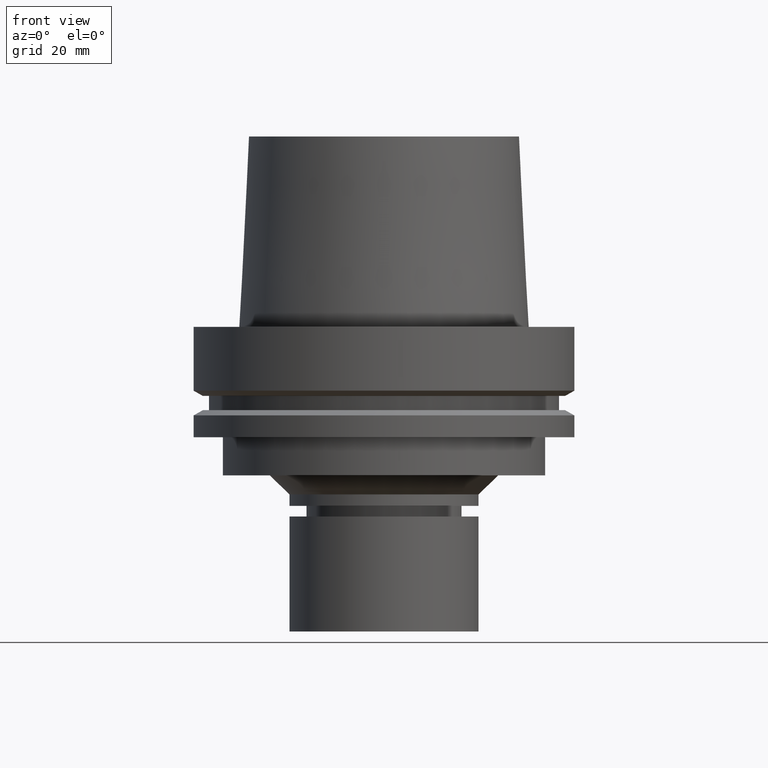
[diagram: clean part render]
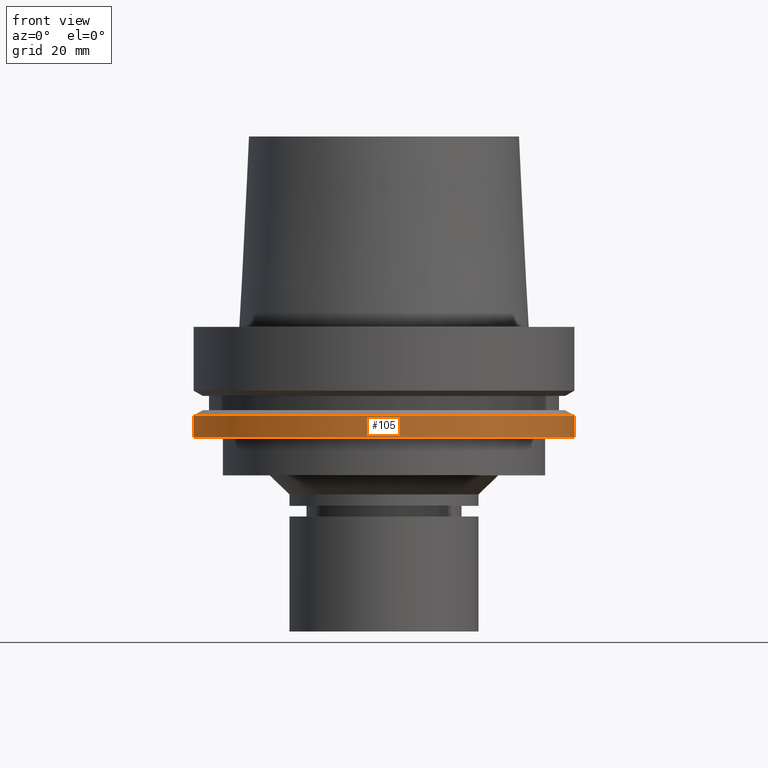
[diagram: same view with one face highlighted and labeled with its STEP entity id]
A machine part, front view. The second image highlights one B-rep face of the part: STEP entity #105.
In plain terms, the highlighted cylindrical surface (bore or boss wall) has radius 50 mm, axis along (0, 0, -1).
Its self-contained STEP definition (entity closure, byte-faithful):
#105=ADVANCED_FACE('Unnamed[1]',(#255,#256),#257,.T.);
#149=EDGE_CURVE('Unnamed[1]',#324,#324,#325,.T.);
#191=EDGE_CURVE('Unnamed[1]',#391,#391,#392,.T.);
#255=FACE_BOUND('',#463,.T.);
#256=FACE_BOUND('',#464,.T.);
#257=CYLINDRICAL_SURFACE('',#465,50.0);
#324=VERTEX_POINT('',#548);
#325=CIRCLE('',#549,50.0);
#391=VERTEX_POINT('',#632);
#392=CIRCLE('',#633,50.0);
#463=EDGE_LOOP('',(#690));
#464=EDGE_LOOP('',(#691));
#465=AXIS2_PLACEMENT_3D('',#692,#693,#694);
#548=CARTESIAN_POINT('',(1.77573785876366E-015,50.0,-29.0));
#549=AXIS2_PLACEMENT_3D('',#767,#768,#769);
#632=CARTESIAN_POINT('',(1.42350465615161E-015,50.0,-23.24759526));
#633=AXIS2_PLACEMENT_3D('',#842,#843,#844);
#690=ORIENTED_EDGE('',*,*,#149,.F.);
#691=ORIENTED_EDGE('',*,*,#191,.T.);
#692=CARTESIAN_POINT('',(1.59962125745764E-015,3.19924251491527E-015,-26.12379763));
#693=DIRECTION('',(6.12323399573677E-017,1.22464679914735E-016,-1.0));
#694=DIRECTION('',(-1.23259516440783E-032,1.0,1.22464679914735E-016));
#767=CARTESIAN_POINT('',(1.77573785876366E-015,3.55147571752733E-015,-29.0));
#768=DIRECTION('',(6.12323399573677E-017,1.22464679914735E-016,-1.0));
#769=DIRECTION('',(-1.23259516440783E-032,1.0,1.22464679914735E-016));
#842=CARTESIAN_POINT('',(1.42350465615161E-015,2.84700931230322E-015,-23.24759526));
#843=DIRECTION('',(6.12323399573677E-017,1.22464679914735E-016,-1.0));
#844=DIRECTION('',(-1.23259516440783E-032,1.0,1.22464679914735E-016));